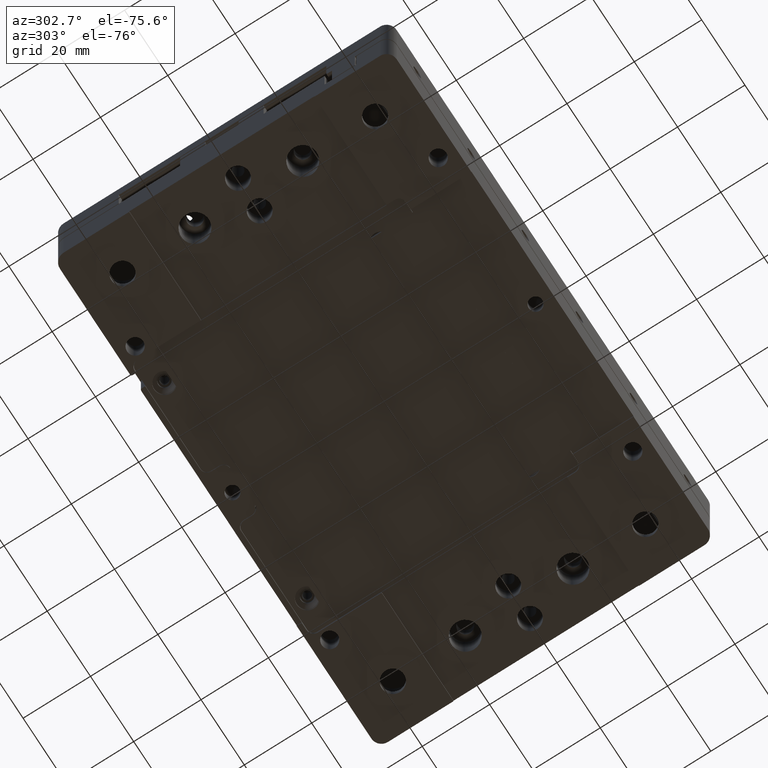
[diagram: clean part render]
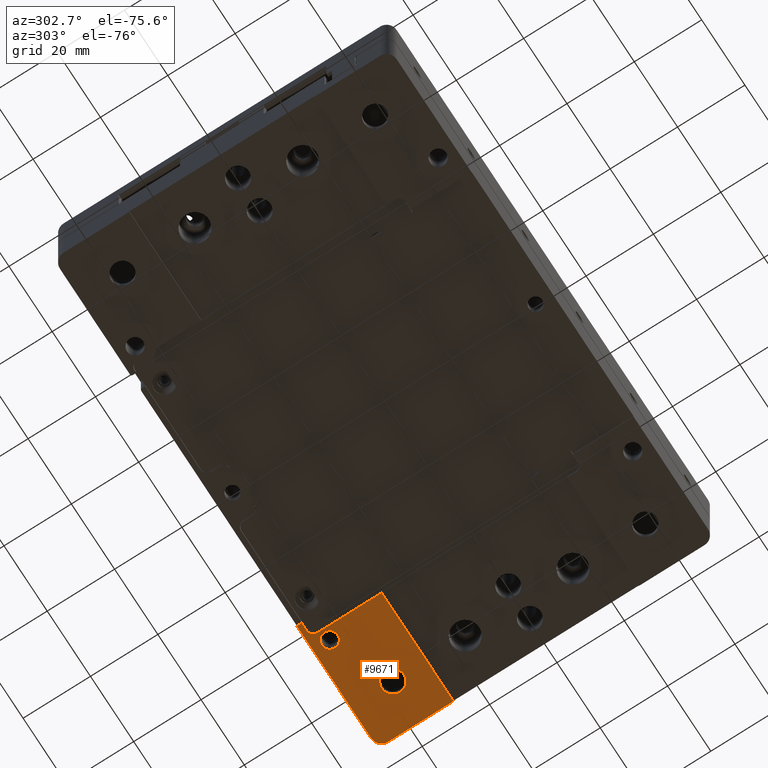
[diagram: same view with one face highlighted and labeled with its STEP entity id]
A machine part, auxiliary view. The second image highlights one B-rep face of the part: STEP entity #9671.
In plain terms, the highlighted planar face has unit normal (0, 0, -1).
Its self-contained STEP definition (entity closure, byte-faithful):
#48 = DIRECTION ( 'NONE',  ( -0.000000000000000000, -1.000000000000000000, -0.000000000000000000 ) ) ;
#63 = VECTOR ( 'NONE', #3970, 1000.000000000000000 ) ;
#84 = VERTEX_POINT ( 'NONE', #12490 ) ;
#87 = EDGE_CURVE ( 'NONE', #16020, #5239, #8977, .T. ) ;
#639 = DIRECTION ( 'NONE',  ( -1.000000000000000000, 0.000000000000000000, -0.000000000000000000 ) ) ;
#755 = DIRECTION ( 'NONE',  ( 0.000000000000000000, 0.000000000000000000, -1.000000000000000000 ) ) ;
#868 = VECTOR ( 'NONE', #1009, 1000.000000000000000 ) ;
#925 = VERTEX_POINT ( 'NONE', #12084 ) ;
#1009 = DIRECTION ( 'NONE',  ( -0.000000000000000000, 1.000000000000000000, 0.000000000000000000 ) ) ;
#1033 = EDGE_CURVE ( 'NONE', #5018, #84, #2078, .T. ) ;
#1161 = AXIS2_PLACEMENT_3D ( 'NONE', #1267, #5141, #8530 ) ;
#1267 = CARTESIAN_POINT ( 'NONE',  ( 39.75000000000000000, 46.50000000000000000, -14.50000000000000000 ) ) ;
#1414 = DIRECTION ( 'NONE',  ( -1.000000000000000000, 0.000000000000000000, 0.000000000000000000 ) ) ;
#1747 = CARTESIAN_POINT ( 'NONE',  ( 75.00000000000000000, -50.00000000000000000, -14.50000000000000000 ) ) ;
#2078 = LINE ( 'NONE', #1747, #21326 ) ;
#2222 = LINE ( 'NONE', #17785, #11953 ) ;
#2391 = ORIENTED_EDGE ( 'NONE', *, *, #14029, .T. ) ;
#2561 = FACE_OUTER_BOUND ( 'NONE', #20985, .T. ) ;
#2948 = VECTOR ( 'NONE', #15710, 1000.000000000000000 ) ;
#3112 = LINE ( 'NONE', #5276, #2948 ) ;
#3332 = CIRCLE ( 'NONE', #1161, 2.000000000000001776 ) ;
#3596 = EDGE_CURVE ( 'NONE', #6437, #20821, #2222, .T. ) ;
#3684 = ORIENTED_EDGE ( 'NONE', *, *, #3596, .T. ) ;
#3917 = AXIS2_PLACEMENT_3D ( 'NONE', #11750, #16975, #1414 ) ;
#3970 = DIRECTION ( 'NONE',  ( -1.000000000000000000, -0.000000000000000000, 0.000000000000000000 ) ) ;
#4159 = CARTESIAN_POINT ( 'NONE',  ( -75.00000000000000000, -50.00000000000000000, -14.50000000000000000 ) ) ;
#4530 = CARTESIAN_POINT ( 'NONE',  ( 45.00000000000000000, 45.00000000000000000, -14.50000000000000000 ) ) ;
#4916 = EDGE_CURVE ( 'NONE', #84, #14284, #3112, .T. ) ;
#5018 = VERTEX_POINT ( 'NONE', #6523 ) ;
#5141 = DIRECTION ( 'NONE',  ( -0.000000000000000000, -0.000000000000000000, 1.000000000000000000 ) ) ;
#5239 = VERTEX_POINT ( 'NONE', #11478 ) ;
#5276 = CARTESIAN_POINT ( 'NONE',  ( -75.00000000000000000, 27.49999999999999645, -14.50000000000000000 ) ) ;
#5310 = EDGE_CURVE ( 'NONE', #5239, #6437, #3332, .T. ) ;
#5679 = LINE ( 'NONE', #12366, #63 ) ;
#6164 = ORIENTED_EDGE ( 'NONE', *, *, #13991, .T. ) ;
#6306 = CARTESIAN_POINT ( 'NONE',  ( 65.79999999999999716, 37.50000000000000000, -14.50000000000000000 ) ) ;
#6437 = VERTEX_POINT ( 'NONE', #7771 ) ;
#6523 = CARTESIAN_POINT ( 'NONE',  ( 75.00000000000001421, 47.00000000000000000, -14.49999999999999822 ) ) ;
#6708 = DIRECTION ( 'NONE',  ( 1.000000000000000000, 0.000000000000000000, 0.000000000000000000 ) ) ;
#6711 = EDGE_LOOP ( 'NONE', ( #2391 ) ) ;
#6802 = ORIENTED_EDGE ( 'NONE', *, *, #5310, .T. ) ;
#6878 = CIRCLE ( 'NONE', #7596, 3.000000000000002665 ) ;
#7596 = AXIS2_PLACEMENT_3D ( 'NONE', #12146, #13396, #6708 ) ;
#7771 = CARTESIAN_POINT ( 'NONE',  ( 39.75000000000000000, 48.50000000000000000, -14.50000000000000000 ) ) ;
#8114 = VERTEX_POINT ( 'NONE', #6306 ) ;
#8244 = EDGE_LOOP ( 'NONE', ( #11911 ) ) ;
#8279 = LINE ( 'NONE', #13045, #868 ) ;
#8530 = DIRECTION ( 'NONE',  ( -1.000000000000000000, 0.000000000000000000, 0.000000000000000000 ) ) ;
#8590 = EDGE_CURVE ( 'NONE', #14284, #16020, #12961, .T. ) ;
#8742 = AXIS2_PLACEMENT_3D ( 'NONE', #4530, #16792, #21457 ) ;
#8977 = LINE ( 'NONE', #19219, #13261 ) ;
#9671 = ADVANCED_FACE ( 'NONE', ( #13113, #17904, #2561 ), #16306, .T. ) ;
#10001 = DIRECTION ( 'NONE',  ( 0.000000000000000000, 0.000000000000000000, 1.000000000000000000 ) ) ;
#11478 = CARTESIAN_POINT ( 'NONE',  ( 41.74999999999999289, 46.50000000000000000, -14.50000000000000000 ) ) ;
#11731 = ORIENTED_EDGE ( 'NONE', *, *, #4916, .T. ) ;
#11750 = CARTESIAN_POINT ( 'NONE',  ( 42.50000000000000000, 32.50000000000000000, -14.50000000000000000 ) ) ;
#11911 = ORIENTED_EDGE ( 'NONE', *, *, #15494, .T. ) ;
#11932 = CARTESIAN_POINT ( 'NONE',  ( 37.50000000000000000, 48.50000000000000711, -14.50000000000000000 ) ) ;
#11953 = VECTOR ( 'NONE', #16184, 1000.000000000000000 ) ;
#12084 = CARTESIAN_POINT ( 'NONE',  ( 72.00000000000001421, 50.00000000000000000, -14.49999999999999822 ) ) ;
#12146 = CARTESIAN_POINT ( 'NONE',  ( 72.00000000000001421, 47.00000000000000000, -14.49999999999999822 ) ) ;
#12366 = CARTESIAN_POINT ( 'NONE',  ( -75.00000000000000000, 50.00000000000000000, -14.50000000000000000 ) ) ;
#12490 = CARTESIAN_POINT ( 'NONE',  ( 75.00000000000000000, 27.49999999999999645, -14.50000000000000000 ) ) ;
#12961 = CIRCLE ( 'NONE', #3917, 4.999999999999997335 ) ;
#13045 = CARTESIAN_POINT ( 'NONE',  ( 37.50000000000000000, 50.00000000000000000, -14.50000000000000000 ) ) ;
#13113 = FACE_BOUND ( 'NONE', #6711, .T. ) ;
#13261 = VECTOR ( 'NONE', #13753, 1000.000000000000000 ) ;
#13307 = ORIENTED_EDGE ( 'NONE', *, *, #19495, .T. ) ;
#13396 = DIRECTION ( 'NONE',  ( -0.000000000000000000, -0.000000000000000000, -1.000000000000000000 ) ) ;
#13753 = DIRECTION ( 'NONE',  ( 0.000000000000000000, 1.000000000000000000, 0.000000000000000000 ) ) ;
#13991 = EDGE_CURVE ( 'NONE', #925, #5018, #6878, .T. ) ;
#14029 = EDGE_CURVE ( 'NONE', #8114, #8114, #18493, .T. ) ;
#14271 = ORIENTED_EDGE ( 'NONE', *, *, #87, .T. ) ;
#14284 = VERTEX_POINT ( 'NONE', #14510 ) ;
#14376 = VERTEX_POINT ( 'NONE', #20309 ) ;
#14510 = CARTESIAN_POINT ( 'NONE',  ( 42.49999999999999289, 27.49999999999999645, -14.50000000000000000 ) ) ;
#15494 = EDGE_CURVE ( 'NONE', #18794, #18794, #16357, .T. ) ;
#15560 = AXIS2_PLACEMENT_3D ( 'NONE', #4159, #755, #639 ) ;
#15710 = DIRECTION ( 'NONE',  ( -1.000000000000000000, 0.000000000000000000, -0.000000000000000000 ) ) ;
#16020 = VERTEX_POINT ( 'NONE', #22080 ) ;
#16184 = DIRECTION ( 'NONE',  ( -1.000000000000000000, -0.000000000000000000, -0.000000000000000000 ) ) ;
#16215 = EDGE_CURVE ( 'NONE', #925, #14376, #5679, .T. ) ;
#16306 = PLANE ( 'NONE',  #15560 ) ;
#16357 = CIRCLE ( 'NONE', #8742, 2.399999999999999467 ) ;
#16792 = DIRECTION ( 'NONE',  ( 0.000000000000000000, 0.000000000000000000, 1.000000000000000000 ) ) ;
#16975 = DIRECTION ( 'NONE',  ( 0.000000000000000000, 0.000000000000000000, -1.000000000000000000 ) ) ;
#17523 = ORIENTED_EDGE ( 'NONE', *, *, #1033, .T. ) ;
#17785 = CARTESIAN_POINT ( 'NONE',  ( 9.500000000000000000, 48.50000000000000000, -14.50000000000000000 ) ) ;
#17904 = FACE_BOUND ( 'NONE', #8244, .T. ) ;
#18493 = CIRCLE ( 'NONE', #21012, 3.299999999999997158 ) ;
#18757 = CARTESIAN_POINT ( 'NONE',  ( 62.50000000000000000, 37.50000000000000000, -14.50000000000000000 ) ) ;
#18794 = VERTEX_POINT ( 'NONE', #20382 ) ;
#18877 = DIRECTION ( 'NONE',  ( 1.000000000000000000, 0.000000000000000000, 0.000000000000000000 ) ) ;
#19075 = ORIENTED_EDGE ( 'NONE', *, *, #16215, .F. ) ;
#19219 = CARTESIAN_POINT ( 'NONE',  ( 41.74999999999999289, -50.00000000000000000, -14.50000000000000000 ) ) ;
#19495 = EDGE_CURVE ( 'NONE', #20821, #14376, #8279, .T. ) ;
#20309 = CARTESIAN_POINT ( 'NONE',  ( 37.50000000000000000, 50.00000000000000711, -14.50000000000000000 ) ) ;
#20382 = CARTESIAN_POINT ( 'NONE',  ( 47.39999999999999858, 45.00000000000000000, -14.50000000000000000 ) ) ;
#20801 = ORIENTED_EDGE ( 'NONE', *, *, #8590, .T. ) ;
#20821 = VERTEX_POINT ( 'NONE', #11932 ) ;
#20985 = EDGE_LOOP ( 'NONE', ( #6802, #3684, #13307, #19075, #6164, #17523, #11731, #20801, #14271 ) ) ;
#21012 = AXIS2_PLACEMENT_3D ( 'NONE', #18757, #10001, #18877 ) ;
#21326 = VECTOR ( 'NONE', #48, 1000.000000000000000 ) ;
#21457 = DIRECTION ( 'NONE',  ( 1.000000000000000000, 0.000000000000000000, 0.000000000000000000 ) ) ;
#22080 = CARTESIAN_POINT ( 'NONE',  ( 41.74999999999999289, 27.55657001667935546, -14.50000000000000000 ) ) ;